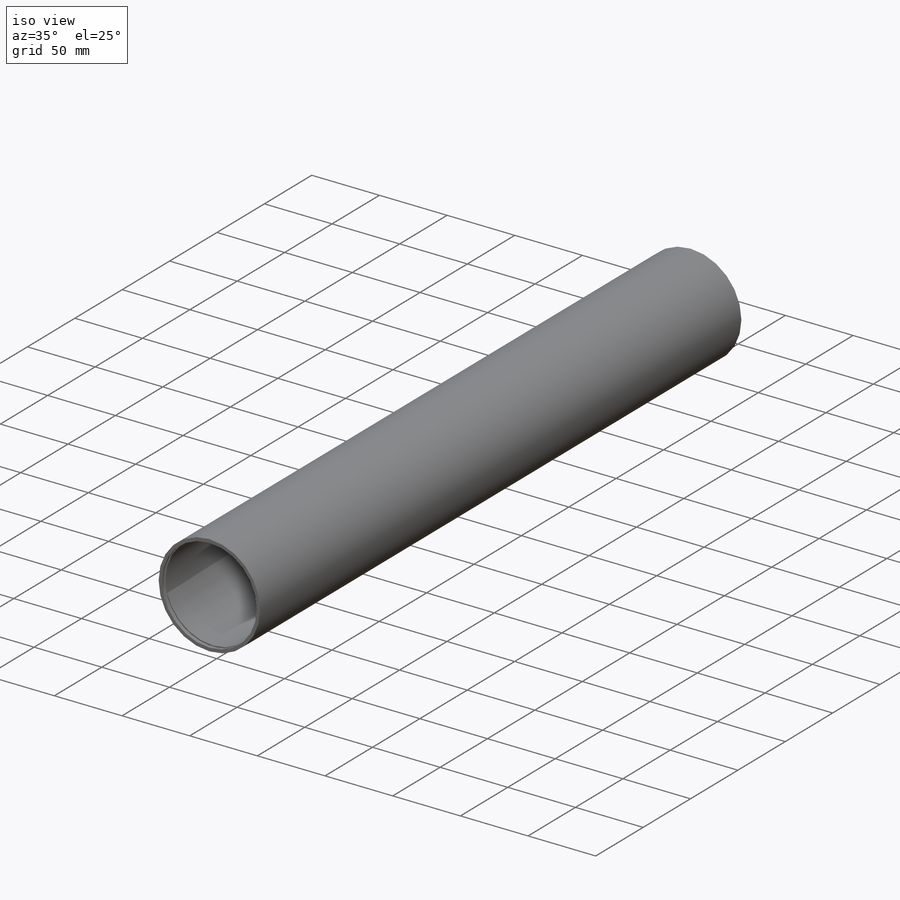
[diagram: iso view]
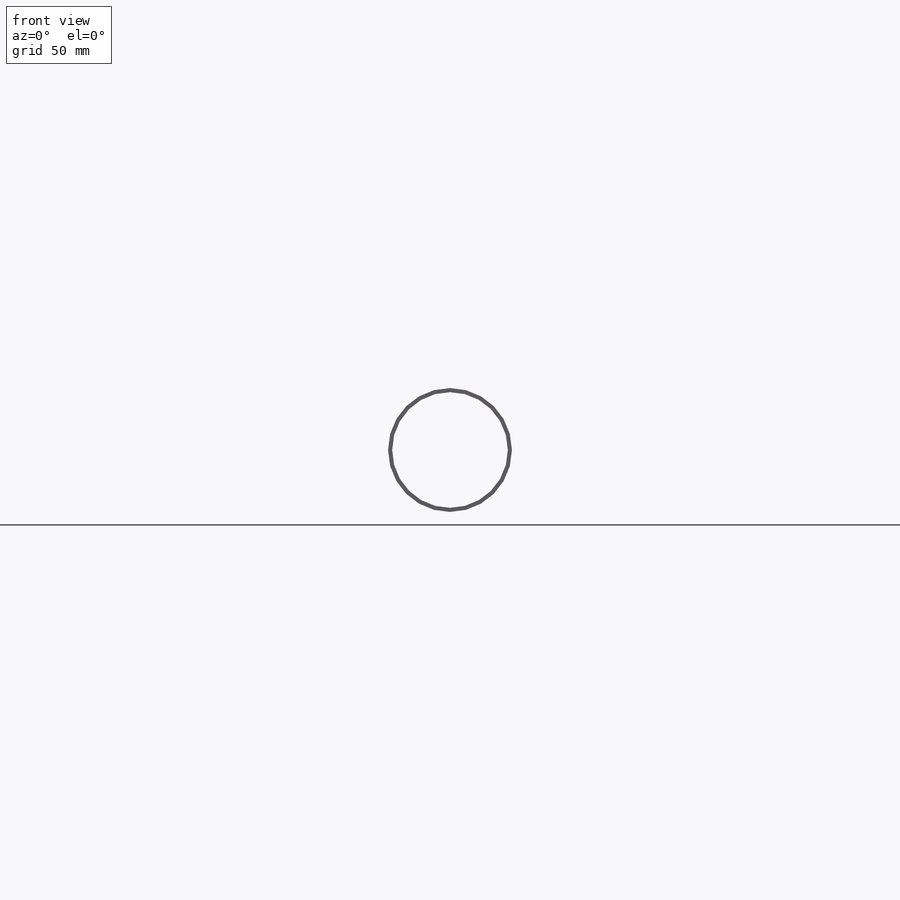
[diagram: front view]
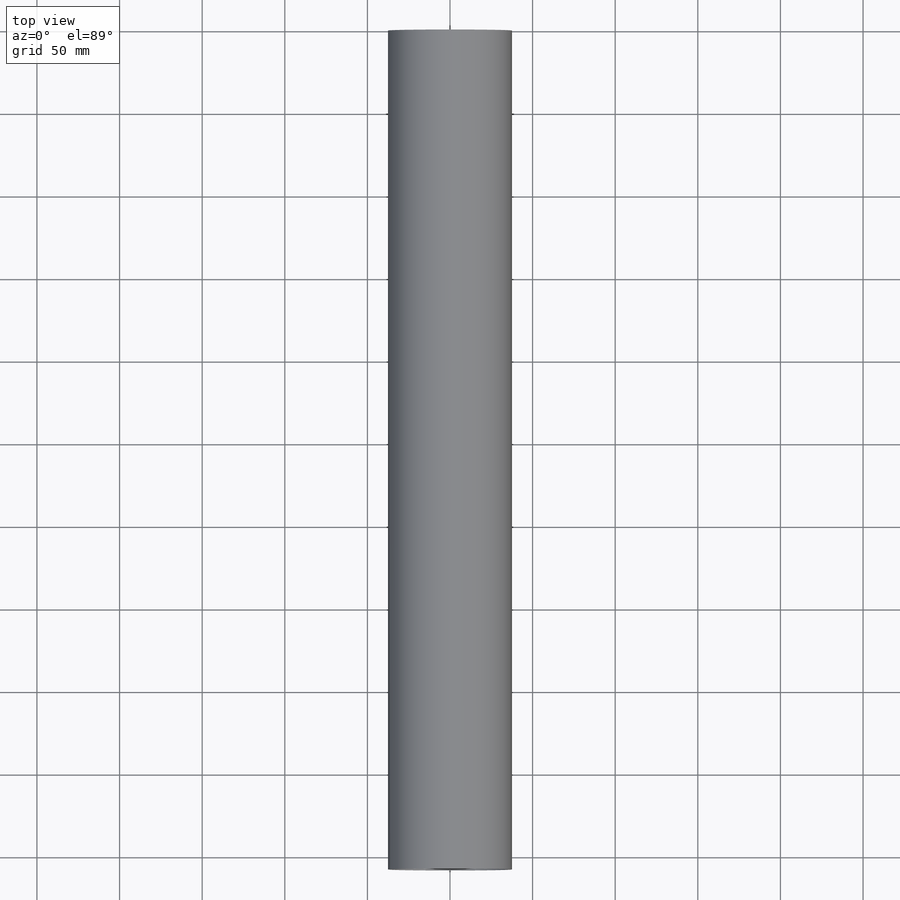
[diagram: top view]
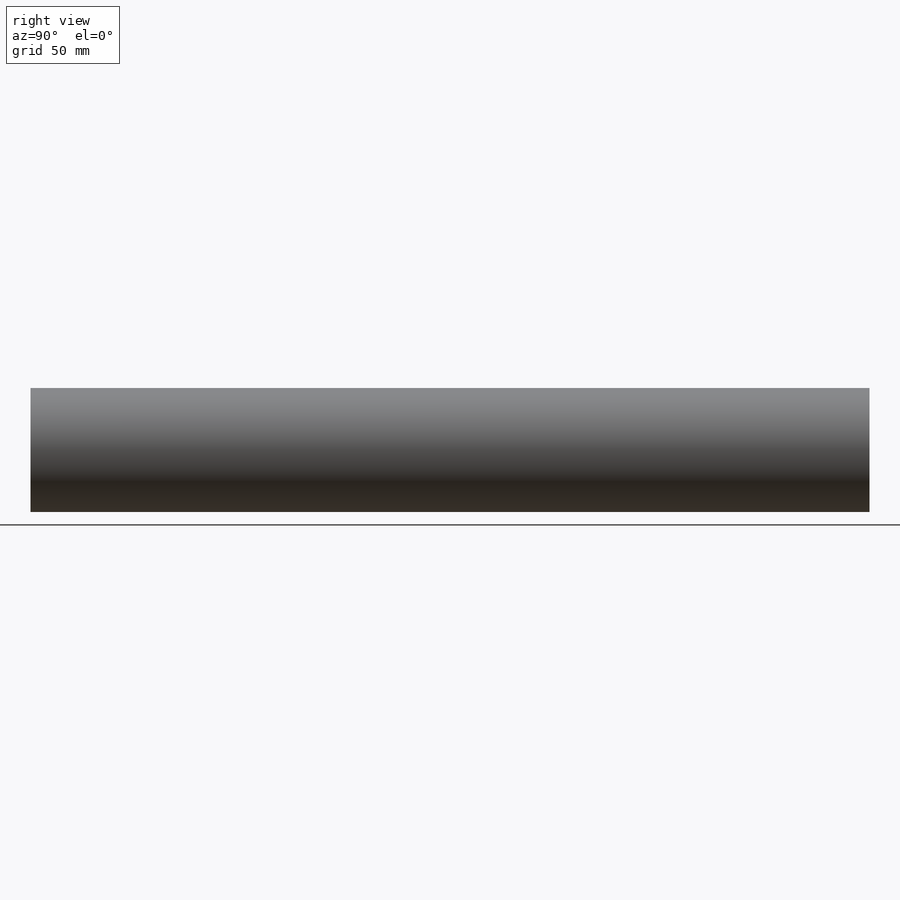
[diagram: right view]
SOLIDWORKS PART (.sldprt)
format: sldprt  version: not decoded by parser v0  size: 289,280 bytes
history: native  units: mm
features: extrude x20, plane x9, sketch x6, cut_revolve x3, material x1, cut_extrude x1 (+11 scaffold rows collapsed)
feature tree (51):
  scaffold x11  (default folders/planes/origin — collapsed)
  material  "6061-T6 (SS)"
  plane  "Bottom"
  plane  "Centerline"
  sketch  "Sketch1"  dims[D1=75.0mm]
  extrude  "Boss-Extrude1"  Depth=507.84mm
  plane  "Plane1"
  sketch  "Sketch3"  dims[D1=~30.460868mm]
  cut_extrude  "Cut-Extrude1"  Depth=507.84mm
  plane  "Plane2"
  plane  "Plane4"  Offset=1.27mm
  plane  "Plane9"  Offset=1.27mm
  sketch  "Sketch5"  dims[D1=~38.994661mm]
  plane  "Plane5"
  sketch  "Sketch7"  dims[D1=0.4mm D2=0.4mm]
  plane  "Plane6"
  sketch  "Sketch9"  dims[D1=0.4mm D2=0.4mm D3=0.0mm D4=2.61mm]
  cut_revolve  "Groove for ANSI B27.7 - 3BM1-68, Basic Internal Retaining Ring1"  [1 undecoded]
  extrude  "CurrentVersion"  [1 undecoded]
  extrude  "EditFunction"  [1 undecoded]
  extrude  "Type"  [1 undecoded]
  extrude  "SubType"  [1 undecoded]
  extrude  "Application"  [1 undecoded]
  extrude  "CurrentVersion"  [1 undecoded]
  extrude  "EditFunction"  [1 undecoded]
  extrude  "Type"  [1 undecoded]
  extrude  "SubType"  [1 undecoded]
  plane  "Plane7"
  sketch  "Sketch11"  dims[D1=0.4mm D2=0.4mm D3=0.0mm D4=2.61mm]
  extrude  "CimlogicGeneral5126"  [1 undecoded]
  extrude  "Application"  [1 undecoded]
  extrude  "CurrentVersion"  [1 undecoded]
  extrude  "EditFunction"  [1 undecoded]
  extrude  "Type"  [1 undecoded]
  extrude  "SubType"  [1 undecoded]
  extrude  "ANS_Persist_attrib_count"  Depth=1 Persist_Attrib_Count_Val=1
  cut_revolve  "ANS_PERSIST_COUNT"  [1 undecoded]
  extrude  "ANSYS_Persist_Key_1"  [1 undecoded]
  extrude  "ANSYS_Persist_Key_Value"  [1 undecoded]
  cut_revolve  "ANS_PERSIST_KEY"  [1 undecoded]
  extrude  "ANSYS_Persist_Key_Value"  [1 undecoded]
decode coverage: 9 of 30 modeling features carry decoded parameters
note: ~ marks probable driven/reference dimensions
note: 21 parameter values undecoded
summary: no parameter record found for 21 features
note: suppression state not decoded; provenance and decode notes live in map.json
